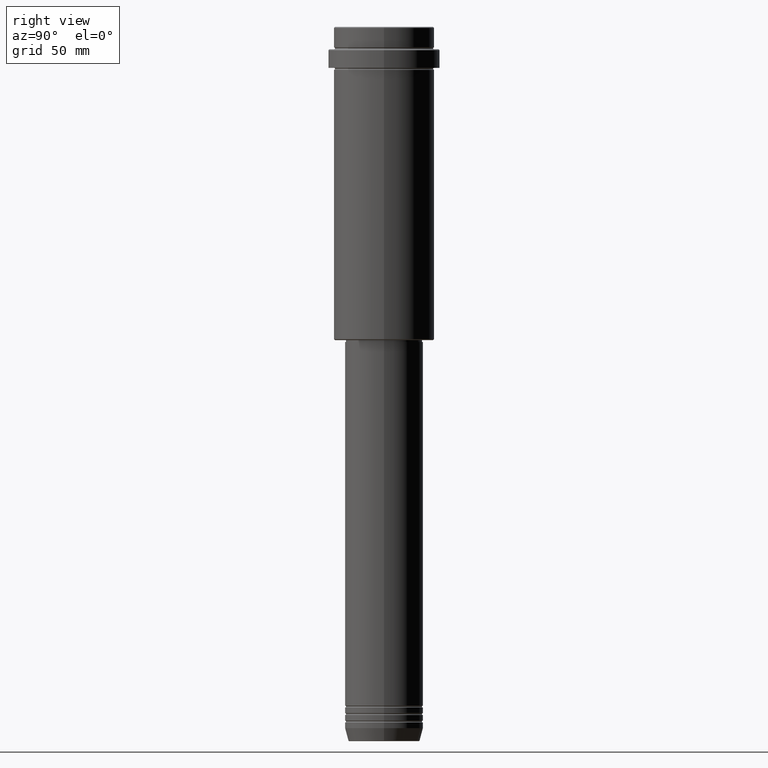
[diagram: clean part render]
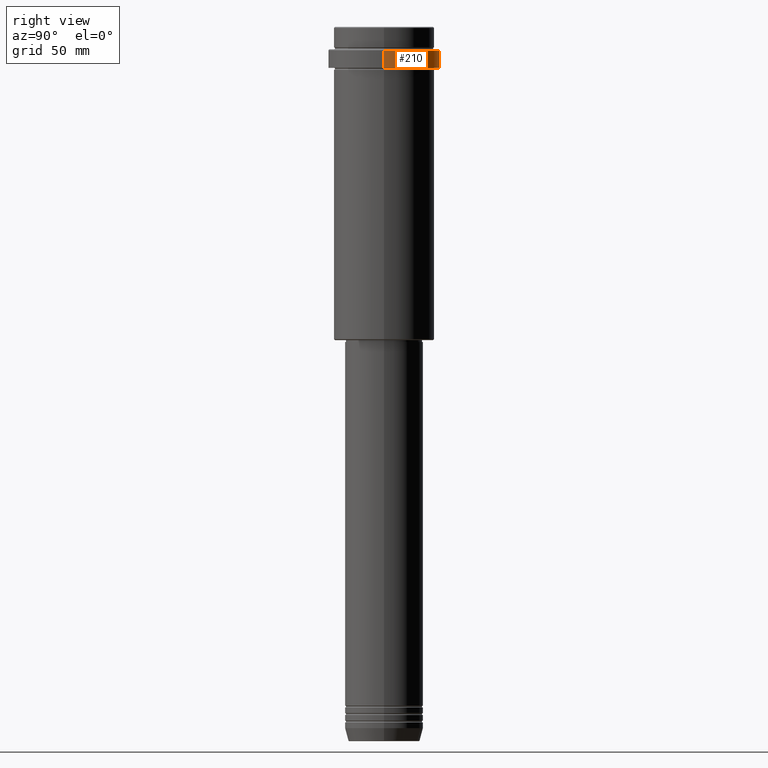
[diagram: same view with one face highlighted and labeled with its STEP entity id]
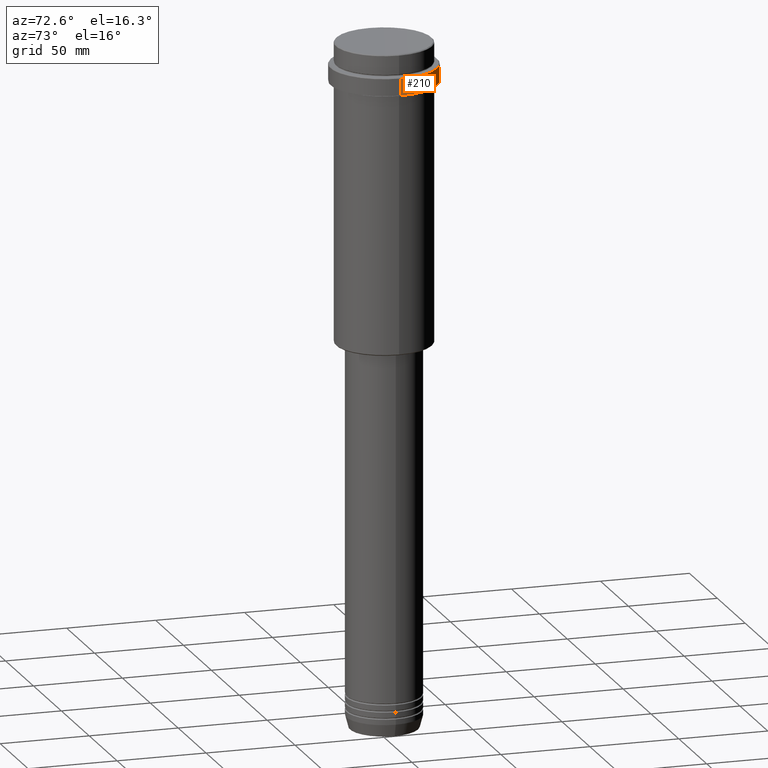
[diagram: same view with one face highlighted and labeled with its STEP entity id]
A machine part, right view. The second image highlights one B-rep face of the part: STEP entity #210.
A second angle (auxiliary view) of the same face is appended — the face is thin or edge-on in the first view.
In plain terms, the highlighted cylindrical surface (partial cylindrical patch) has radius 30 mm, axis along (-0, -0, 1).
Its self-contained STEP definition (entity closure, byte-faithful):
#28 = ORIENTED_EDGE ( 'NONE', *, *, #1200, .T. ) ;
#39 = CARTESIAN_POINT ( 'NONE',  ( 30.00000000000000000, 0.000000000000000000, 0.000000000000000000 ) ) ;
#93 = DIRECTION ( 'NONE',  ( -0.000000000000000000, -0.000000000000000000, 1.000000000000000000 ) ) ;
#100 = CARTESIAN_POINT ( 'NONE',  ( 0.000000000000000000, 0.000000000000000000, -22.00000000000000355 ) ) ;
#114 = LINE ( 'NONE', #1071, #1249 ) ;
#158 = EDGE_LOOP ( 'NONE', ( #962, #28, #829, #1031 ) ) ;
#182 = DIRECTION ( 'NONE',  ( -0.000000000000000000, -0.000000000000000000, 1.000000000000000000 ) ) ;
#195 = CIRCLE ( 'NONE', #683, 30.00000000000000000 ) ;
#210 = ADVANCED_FACE ( 'NONE', ( #958 ), #387, .T. ) ;
#216 = AXIS2_PLACEMENT_3D ( 'NONE', #1038, #182, #395 ) ;
#231 = LINE ( 'NONE', #39, #1070 ) ;
#340 = CIRCLE ( 'NONE', #591, 29.99999999999999645 ) ;
#387 = CYLINDRICAL_SURFACE ( 'NONE', #216, 30.00000000000000000 ) ;
#395 = DIRECTION ( 'NONE',  ( 1.000000000000000000, 0.000000000000000000, 0.000000000000000000 ) ) ;
#431 = DIRECTION ( 'NONE',  ( -0.000000000000000000, -0.000000000000000000, 1.000000000000000000 ) ) ;
#517 = VERTEX_POINT ( 'NONE', #1129 ) ;
#541 = CARTESIAN_POINT ( 'NONE',  ( -30.00000000000000000, 3.673940397442059178E-15, -12.50000000000006573 ) ) ;
#544 = VERTEX_POINT ( 'NONE', #575 ) ;
#575 = CARTESIAN_POINT ( 'NONE',  ( 30.00000000000000000, 0.000000000000000000, -12.50000000000006573 ) ) ;
#591 = AXIS2_PLACEMENT_3D ( 'NONE', #100, #431, #1201 ) ;
#660 = CARTESIAN_POINT ( 'NONE',  ( 0.000000000000000000, 0.000000000000000000, -12.50000000000006573 ) ) ;
#683 = AXIS2_PLACEMENT_3D ( 'NONE', #660, #866, #1318 ) ;
#828 = EDGE_CURVE ( 'NONE', #1225, #544, #195, .T. ) ;
#829 = ORIENTED_EDGE ( 'NONE', *, *, #828, .T. ) ;
#866 = DIRECTION ( 'NONE',  ( 0.000000000000000000, 0.000000000000000000, -1.000000000000000000 ) ) ;
#870 = EDGE_CURVE ( 'NONE', #517, #927, #340, .T. ) ;
#927 = VERTEX_POINT ( 'NONE', #1322 ) ;
#958 = FACE_OUTER_BOUND ( 'NONE', #158, .T. ) ;
#962 = ORIENTED_EDGE ( 'NONE', *, *, #870, .T. ) ;
#1003 = DIRECTION ( 'NONE',  ( -0.000000000000000000, -0.000000000000000000, 1.000000000000000000 ) ) ;
#1020 = EDGE_CURVE ( 'NONE', #517, #544, #231, .T. ) ;
#1031 = ORIENTED_EDGE ( 'NONE', *, *, #1020, .F. ) ;
#1038 = CARTESIAN_POINT ( 'NONE',  ( 0.000000000000000000, 0.000000000000000000, 0.000000000000000000 ) ) ;
#1070 = VECTOR ( 'NONE', #1003, 1000.000000000000000 ) ;
#1071 = CARTESIAN_POINT ( 'NONE',  ( -30.00000000000000000, 3.673940397442059178E-15, 0.000000000000000000 ) ) ;
#1129 = CARTESIAN_POINT ( 'NONE',  ( 29.99999999999999645, 0.000000000000000000, -22.00000000000000355 ) ) ;
#1200 = EDGE_CURVE ( 'NONE', #927, #1225, #114, .T. ) ;
#1201 = DIRECTION ( 'NONE',  ( 1.000000000000000000, 0.000000000000000000, 0.000000000000000000 ) ) ;
#1225 = VERTEX_POINT ( 'NONE', #541 ) ;
#1249 = VECTOR ( 'NONE', #93, 1000.000000000000000 ) ;
#1318 = DIRECTION ( 'NONE',  ( 1.000000000000000000, 0.000000000000000000, 0.000000000000000000 ) ) ;
#1322 = CARTESIAN_POINT ( 'NONE',  ( -29.99999999999999645, 3.673940397442058389E-15, -22.00000000000000355 ) ) ;